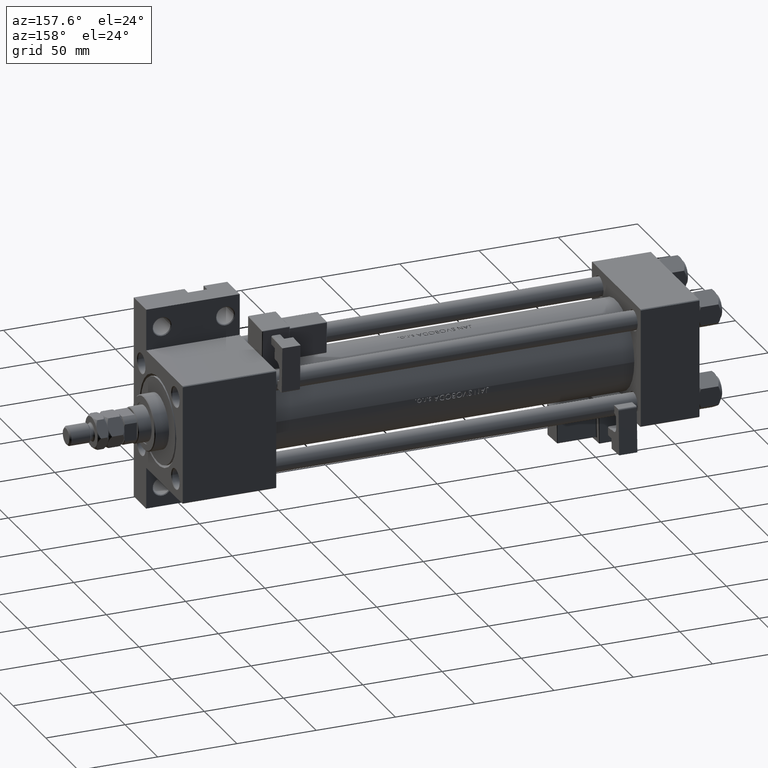
[diagram: clean part render]
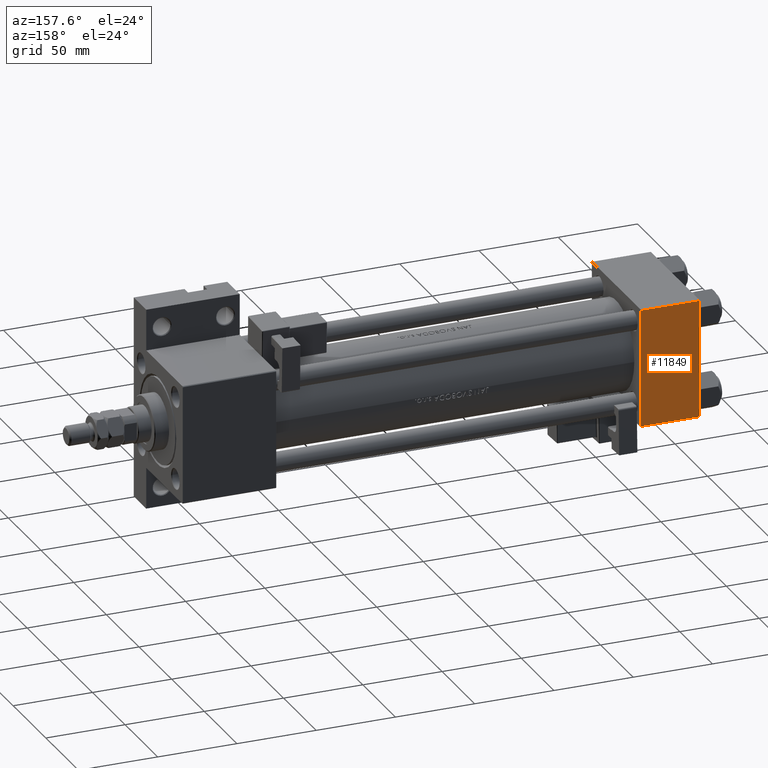
[diagram: same view with one face highlighted and labeled with its STEP entity id]
A machine part, auxiliary view. The second image highlights one B-rep face of the part: STEP entity #11849.
In plain terms, the highlighted planar face has unit normal (0, -1, -0).
Its self-contained STEP definition (entity closure, byte-faithful):
#880 = VERTEX_POINT ( 'NONE', #9888 ) ;
#1327 = DIRECTION ( 'NONE',  ( 0.000000000000000000, 9.251858538542971581E-17, -1.000000000000000000 ) ) ;
#5582 = EDGE_LOOP ( 'NONE', ( #27620, #28077, #45003, #40085 ) ) ;
#8016 = CARTESIAN_POINT ( 'NONE',  ( 37.00000000000000000, 37.49999999999999289, 37.50000000000000000 ) ) ;
#8186 = LINE ( 'NONE', #39612, #42555 ) ;
#9137 = CARTESIAN_POINT ( 'NONE',  ( 37.00000000000000000, 37.49999999999999289, 37.50000000000000000 ) ) ;
#9888 = CARTESIAN_POINT ( 'NONE',  ( 0.000000000000000000, -37.00000000000000711, 37.49999999999999289 ) ) ;
#11849 = ADVANCED_FACE ( 'NONE', ( #41068 ), #41337, .F. ) ;
#12140 = CARTESIAN_POINT ( 'NONE',  ( 37.00000000000000000, 36.99999999999999289, 37.50000000000000000 ) ) ;
#12243 = AXIS2_PLACEMENT_3D ( 'NONE', #9137, #1327, #45253 ) ;
#13209 = LINE ( 'NONE', #13454, #28018 ) ;
#13454 = CARTESIAN_POINT ( 'NONE',  ( 0.000000000000000000, 36.99999999999999289, 37.50000000000000000 ) ) ;
#13753 = VECTOR ( 'NONE', #24723, 1000.000000000000000 ) ;
#18676 = EDGE_CURVE ( 'NONE', #880, #40476, #8186, .T. ) ;
#20395 = VECTOR ( 'NONE', #51143, 1000.000000000000000 ) ;
#21151 = EDGE_CURVE ( 'NONE', #41759, #40476, #38686, .T. ) ;
#24046 = EDGE_CURVE ( 'NONE', #43925, #880, #39816, .T. ) ;
#24361 = CARTESIAN_POINT ( 'NONE',  ( 37.00000000000000000, -37.00000000000000711, 37.49999999999999289 ) ) ;
#24723 = DIRECTION ( 'NONE',  ( 0.000000000000000000, -1.000000000000000000, -9.251858538542971581E-17 ) ) ;
#27244 = EDGE_CURVE ( 'NONE', #41759, #43925, #13209, .T. ) ;
#27620 = ORIENTED_EDGE ( 'NONE', *, *, #24046, .T. ) ;
#28018 = VECTOR ( 'NONE', #28513, 1000.000000000000000 ) ;
#28077 = ORIENTED_EDGE ( 'NONE', *, *, #18676, .T. ) ;
#28183 = CARTESIAN_POINT ( 'NONE',  ( 0.000000000000000000, 36.99999999999999289, 37.50000000000000000 ) ) ;
#28513 = DIRECTION ( 'NONE',  ( -1.000000000000000000, 0.000000000000000000, 0.000000000000000000 ) ) ;
#32004 = CARTESIAN_POINT ( 'NONE',  ( 0.000000000000000000, 37.49999999999999289, 37.50000000000000000 ) ) ;
#35701 = DIRECTION ( 'NONE',  ( 1.000000000000000000, 0.000000000000000000, 0.000000000000000000 ) ) ;
#38686 = LINE ( 'NONE', #8016, #20395 ) ;
#39612 = CARTESIAN_POINT ( 'NONE',  ( 37.00000000000000000, -37.00000000000000711, 37.49999999999999289 ) ) ;
#39816 = LINE ( 'NONE', #32004, #13753 ) ;
#40085 = ORIENTED_EDGE ( 'NONE', *, *, #27244, .T. ) ;
#40476 = VERTEX_POINT ( 'NONE', #24361 ) ;
#41068 = FACE_OUTER_BOUND ( 'NONE', #5582, .T. ) ;
#41337 = PLANE ( 'NONE',  #12243 ) ;
#41759 = VERTEX_POINT ( 'NONE', #12140 ) ;
#42555 = VECTOR ( 'NONE', #35701, 1000.000000000000000 ) ;
#43925 = VERTEX_POINT ( 'NONE', #28183 ) ;
#45003 = ORIENTED_EDGE ( 'NONE', *, *, #21151, .F. ) ;
#45253 = DIRECTION ( 'NONE',  ( 0.000000000000000000, 1.000000000000000000, 9.251858538542971581E-17 ) ) ;
#51143 = DIRECTION ( 'NONE',  ( 0.000000000000000000, -1.000000000000000000, -9.251858538542971581E-17 ) ) ;